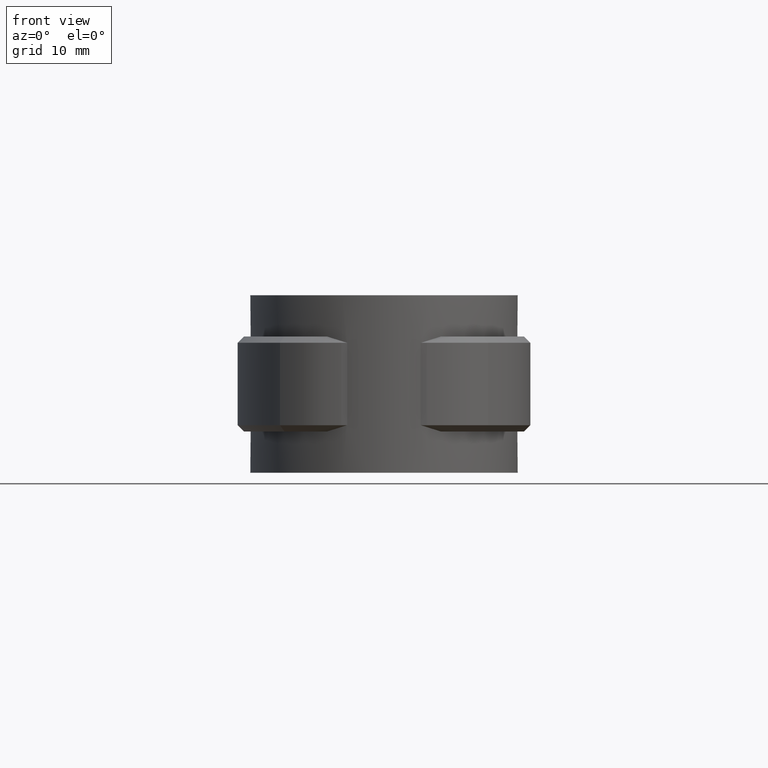
[diagram: clean part render]
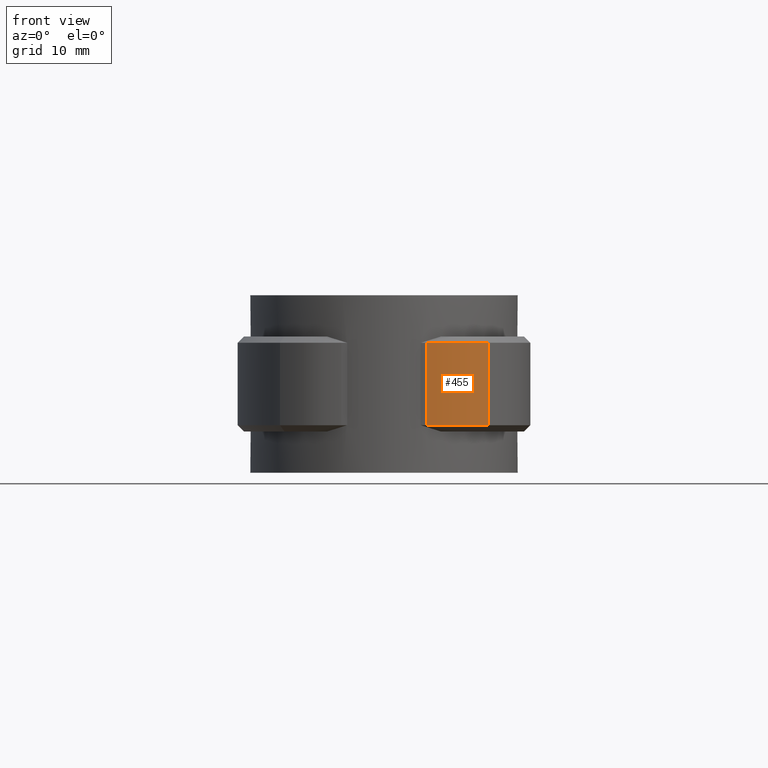
[diagram: same view with one face highlighted and labeled with its STEP entity id]
A machine part, front view. The second image highlights one B-rep face of the part: STEP entity #455.
In plain terms, the highlighted cylindrical surface (partial cylindrical patch) has radius 13.6 mm, axis along (0, 0, 1).
Its self-contained STEP definition (entity closure, byte-faithful):
#455 = ADVANCED_FACE( '', ( #886 ), #887, .T. );
#886 = FACE_OUTER_BOUND( '', #1979, .T. );
#887 = CYLINDRICAL_SURFACE( '', #1980, 13.6000000000000 );
#1979 = EDGE_LOOP( '', ( #4347, #4348, #4349, #4350 ) );
#1980 = AXIS2_PLACEMENT_3D( '', #4351, #4352, #4353 );
#4347 = ORIENTED_EDGE( '', *, *, #6655, .T. );
#4348 = ORIENTED_EDGE( '', *, *, #6676, .T. );
#4349 = ORIENTED_EDGE( '', *, *, #6673, .F. );
#4350 = ORIENTED_EDGE( '', *, *, #6659, .T. );
#4351 = CARTESIAN_POINT( '', ( 6.74778667416212, -6.68000000000001, -20.0000000000000 ) );
#4352 = DIRECTION( '', ( 0.000000000000000, 0.000000000000000, 1.00000000000000 ) );
#4353 = DIRECTION( '', ( 0.275275955036381, 0.961365252429485, 0.000000000000000 ) );
#6655 = EDGE_CURVE( '', #7752, #7791, #7793, .T. );
#6659 = EDGE_CURVE( '', #7799, #7752, #7800, .T. );
#6673 = EDGE_CURVE( '', #7799, #7783, #7821, .T. );
#6676 = EDGE_CURVE( '', #7791, #7783, #7825, .T. );
#7752 = VERTEX_POINT( '', #10866 );
#7783 = VERTEX_POINT( '', #10909 );
#7791 = VERTEX_POINT( '', #10920 );
#7793 = LINE( '', #10922, #10923 );
#7799 = VERTEX_POINT( '', #10933 );
#7800 = CIRCLE( '', #10934, 13.6000000000000 );
#7821 = LINE( '', #10970, #10971 );
#7825 = CIRCLE( '', #10977, 13.6000000000000 );
#10866 = CARTESIAN_POINT( '', ( 16.4128629004502, -16.2479831490258, -19.0000000000000 ) );
#10909 = CARTESIAN_POINT( '', ( 6.74778667416212, -20.2800000000000, -6.00000000000000 ) );
#10920 = CARTESIAN_POINT( '', ( 16.4128629004502, -16.2479831490258, -6.00000000000000 ) );
#10922 = CARTESIAN_POINT( '', ( 16.4128629004502, -16.2479831490258, -20.0000000000000 ) );
#10923 = VECTOR( '', #12866, 1000.00000000000 );
#10933 = CARTESIAN_POINT( '', ( 6.74778667416212, -20.2800000000000, -19.0000000000000 ) );
#10934 = AXIS2_PLACEMENT_3D( '', #12871, #12872, #12873 );
#10970 = CARTESIAN_POINT( '', ( 6.74778667416212, -20.2800000000000, -20.0000000000000 ) );
#10971 = VECTOR( '', #12886, 1000.00000000000 );
#10977 = AXIS2_PLACEMENT_3D( '', #12889, #12890, #12891 );
#12866 = DIRECTION( '', ( 0.000000000000000, 0.000000000000000, 1.00000000000000 ) );
#12871 = CARTESIAN_POINT( '', ( 6.74778667416212, -6.68000000000001, -19.0000000000000 ) );
#12872 = DIRECTION( '', ( 0.000000000000000, 0.000000000000000, 1.00000000000000 ) );
#12873 = DIRECTION( '', ( 1.00000000000000, 0.000000000000000, 0.000000000000000 ) );
#12886 = DIRECTION( '', ( 0.000000000000000, 0.000000000000000, 1.00000000000000 ) );
#12889 = CARTESIAN_POINT( '', ( 6.74778667416212, -6.68000000000001, -6.00000000000000 ) );
#12890 = DIRECTION( '', ( 0.000000000000000, 0.000000000000000, -1.00000000000000 ) );
#12891 = DIRECTION( '', ( -1.00000000000000, 0.000000000000000, 0.000000000000000 ) );